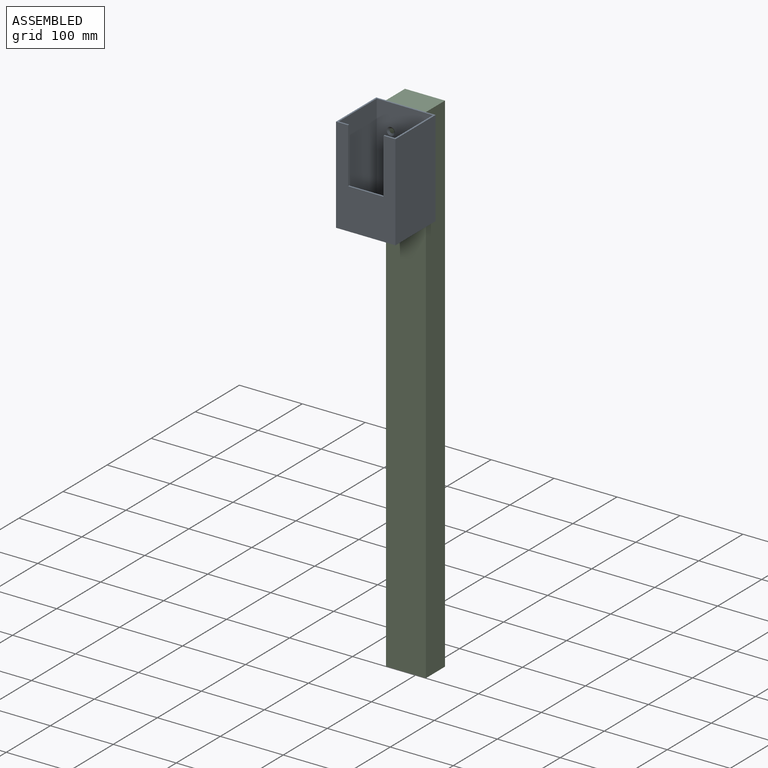
[diagram: assembled view]
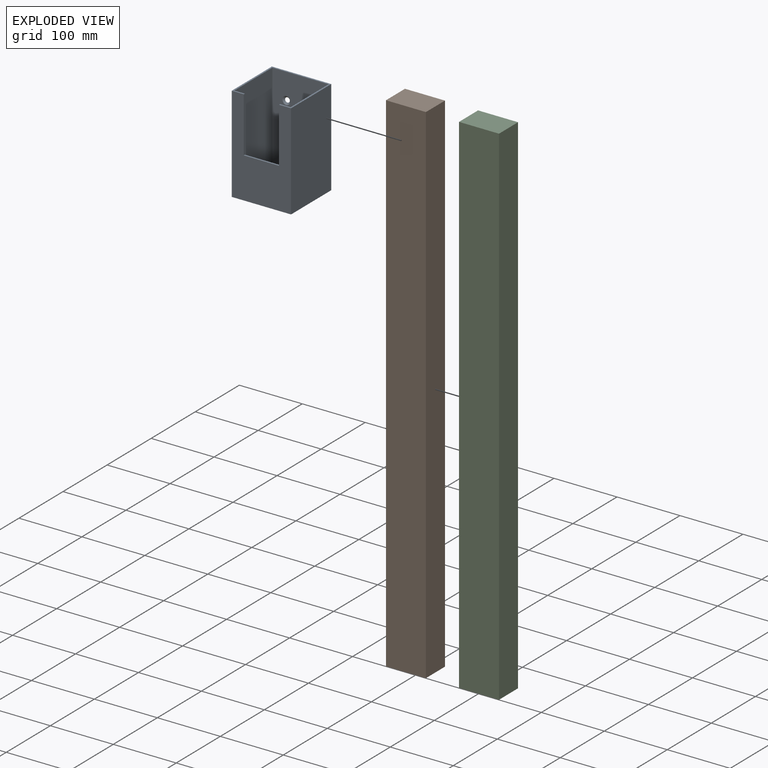
[diagram: exploded view]
GUIDED TOUR — MATED ASSEMBLY (Onshape document 2a7d48a0aaad266be4d17b73, AutoMate assembly 2a7d48a0aaad266be4d17b73_6644b934ed19f1213aa52700_fe9e1bb5ffbb188a94dd1dc5_default)

This assembly has 3 components, labeled P0..P2 below (a component is one placed occurrence of a part; the same part can appear more than once), held together by 2 mates. A mate is a constraint between two components; its type names the relative motion it leaves free:
  PLANAR — leaves sliding in the plane through the listed point (normal = the listed direction) and rotation about that normal free.
Axis/direction vectors are unit vectors and 'through' points are millimeter coordinates, both in the assembly's world frame.

MATES
  1. PLANAR "Planar 1": P0 <-> P1, direction (0.000, 1.000, 0.000) through (0.00, -21.59, 736.38) mm
  2. PLANAR "Planar 2": P0 <-> P1, direction (0.000, 0.000, 1.000) through (0.00, -59.01, 812.80) mm

ASSEMBLY ORDER
  1. P1 — the base component [order heuristic]
  2. P2 — core [order heuristic]
  3. P0 [order verified]
Order-tag legend:
  [order verified] — this step's position reverses a verified removal order: the component was checked to insert without passing through the ones already placed.
  [order heuristic] — the first 2 components form the assembly's core: parts whose collision-free extraction could not be verified, listed in mate-graph order.

Of the 3 components, 3 carry the full construction recipe — the FeatureScript program that regenerates the part's solid from scratch; the rest are supplied as boundary geometry only.
Each toured component is shown spotlighted twice — in the assembled view, then in the exploded view, where a leader line traces a displaced component back to its assembled socket (saturated green if recipe-attached, orange if geometry-only; every other component desaturated gray) — followed by its recipe or geometry summary and the mates that hold it.
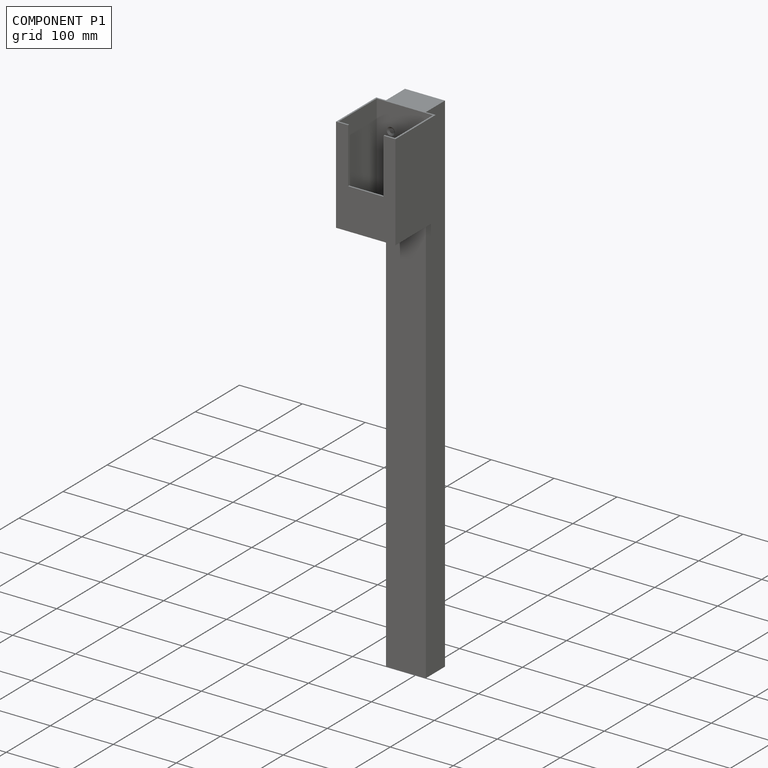
[diagram: component P1 — assembled]
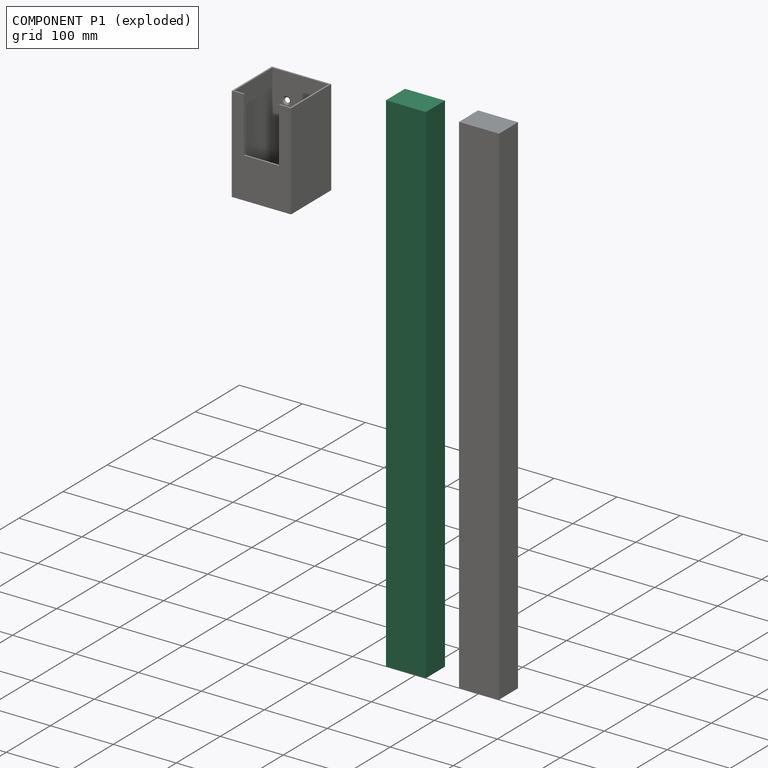
[diagram: component P1 — exploded]
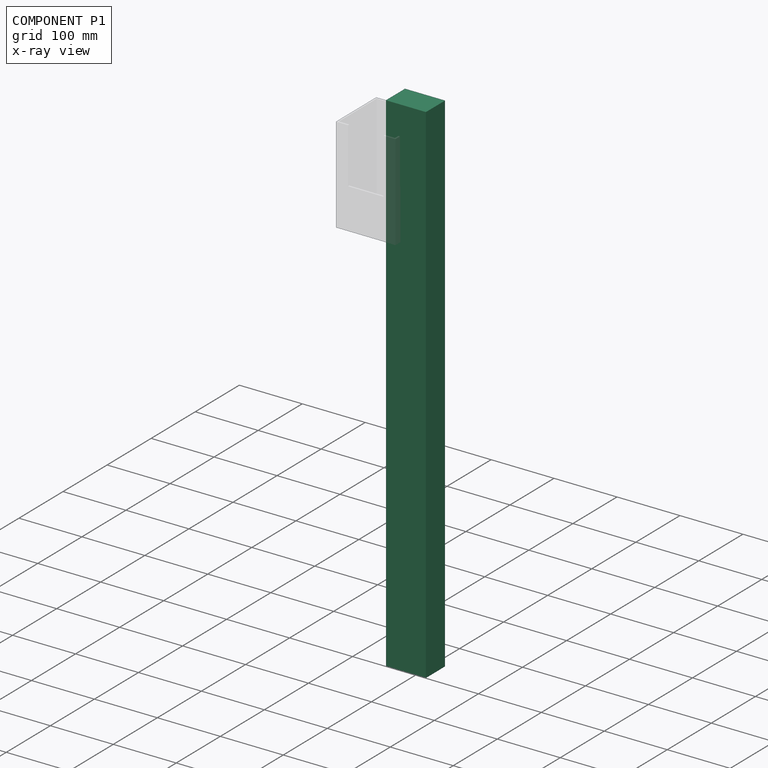
[diagram: component P1 — x-ray view]
COMPONENT P1 — recipe-attached (CADFS 00769639, mesh-verified: the recipe's output STEP matches this component's geometry to below the mesh-comparison resolution (tessellation chordal tolerance ~1.22 mm)).
Held by: PLANAR mate "Planar 1" to P0; PLANAR mate "Planar 2" to P0.
Construction recipe (FeatureScript — the CAD program that rebuilds this solid; sketch coordinates are in the units given by the * unit suffixes, e.g. mm):

FeatureScript 1511;
import(path : "onshape/std/geometry.fs", version : "1511.0");
import(path : "onshape/std/common.fs", version : "1511.0");
const mm = millimeter;
const VERTEX = EntityType.VERTEX;
const EDGE = EntityType.EDGE;
const FACE = EntityType.FACE;
const BODY = EntityType.BODY;
function v(x, y){return vector(x, y);}
function OD(order){return orderDisambiguation(order);}
function OSD(set){return originalSetDisambiguation(set);}
function TD(topology){return topologyDisambiguation(topology);}
function TDD(query){return trueDependencyDisambiguation(query);}
function sQuery(a, b, c) {return sketchEntityQuery(a, b, c);}

annotation { "Feature Type Name" : "Feature", "Feature Type Description" : "" }
export const myFeature = defineFeature(function(context is Context, id is Id, definition is map)
    precondition{}
    {
        {
            var Q0;
            Q0=qCreatedBy(makeId("Top.planeOp"),FACE);
            var sketch = newSketch(context, id + "F0", { "sketchPlane" : qUnion([Q0])});
            skLineSegment(sketch, "E0.bottom", {"start": v(-31.75, 21.59) * mm, "end": v(31.75, 21.59) * mm});
            skLineSegment(sketch, "E0.top", {"start": v(-31.75, -21.6) * mm, "end": v(31.75, -21.6) * mm});
            skLineSegment(sketch, "E0.left", {"start": v(-31.75, 21.59) * mm, "end": v(-31.75, -21.6) * mm});
            skLineSegment(sketch, "E0.right", {"start": v(31.75, 21.59) * mm, "end": v(31.75, -21.6) * mm});
            skPoint(sketch, "E0.middle", {"position": v(0, 0) * mm});
            skSolve(sketch);
        }
        {
            var Q0;
            Q0 = qSketchRegion(id + "F0", true);
            extrude(context, id + "F1", {"entities" : qUnion([Q0]), "depth" : 812.8 * mm, "offsetDistance" : 25.4 * mm});
        }
    });
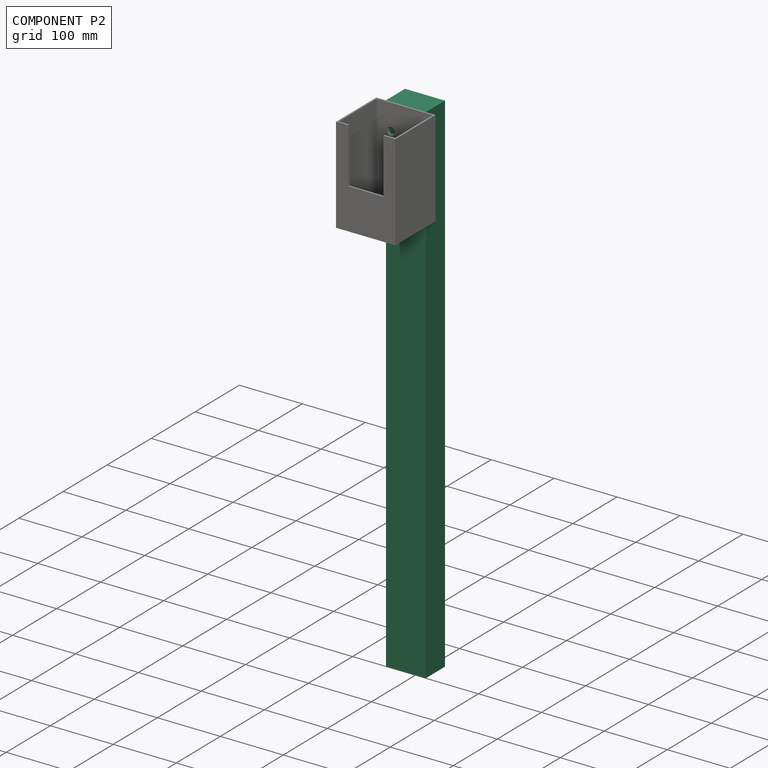
[diagram: component P2 — assembled]
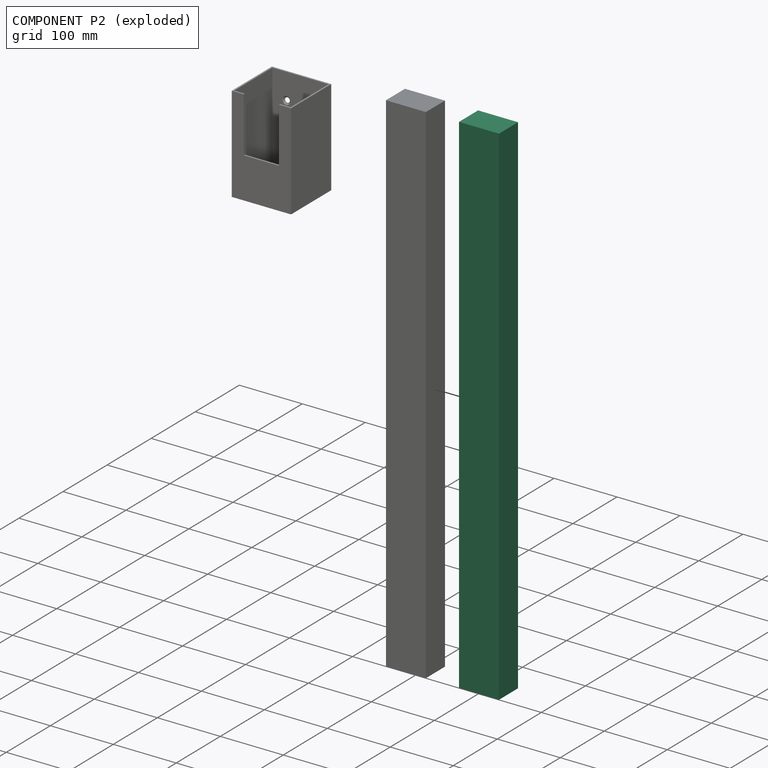
[diagram: component P2 — exploded]
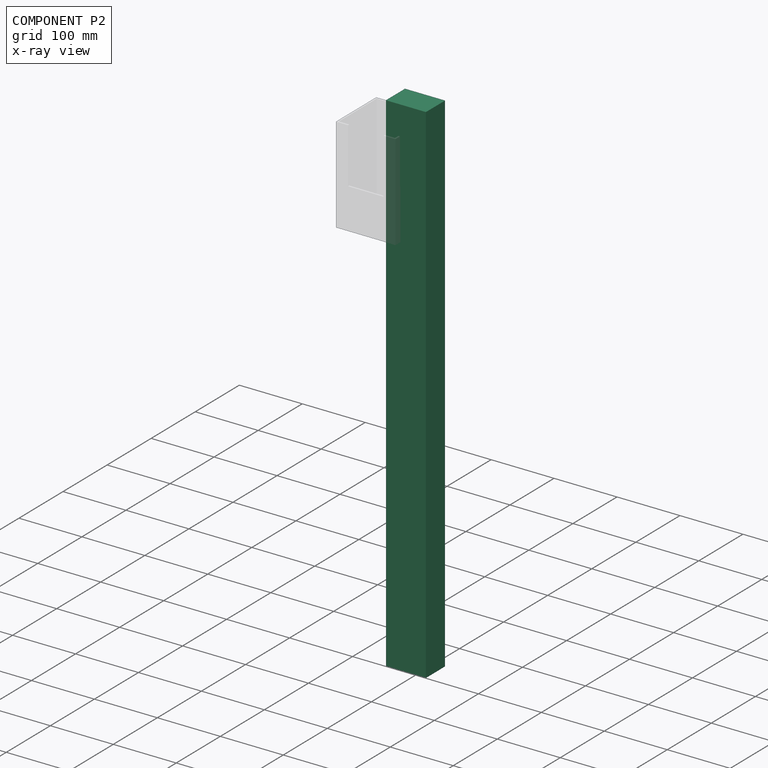
[diagram: component P2 — x-ray view]
COMPONENT P2 — same part as P1 (CADFS 00769639); its construction recipe is shown at P1.
Held by: no mates (free).
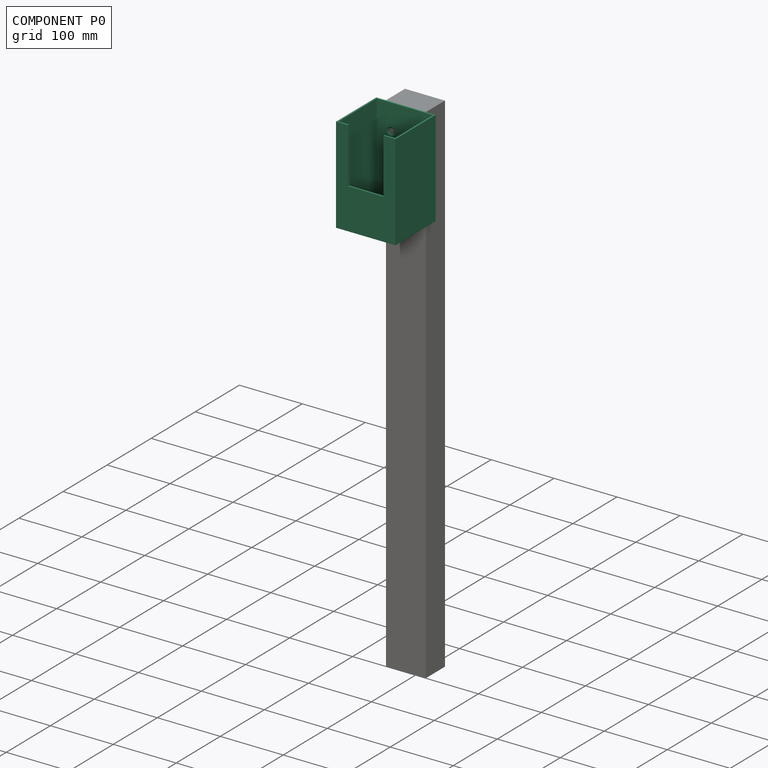
[diagram: component P0 — assembled]
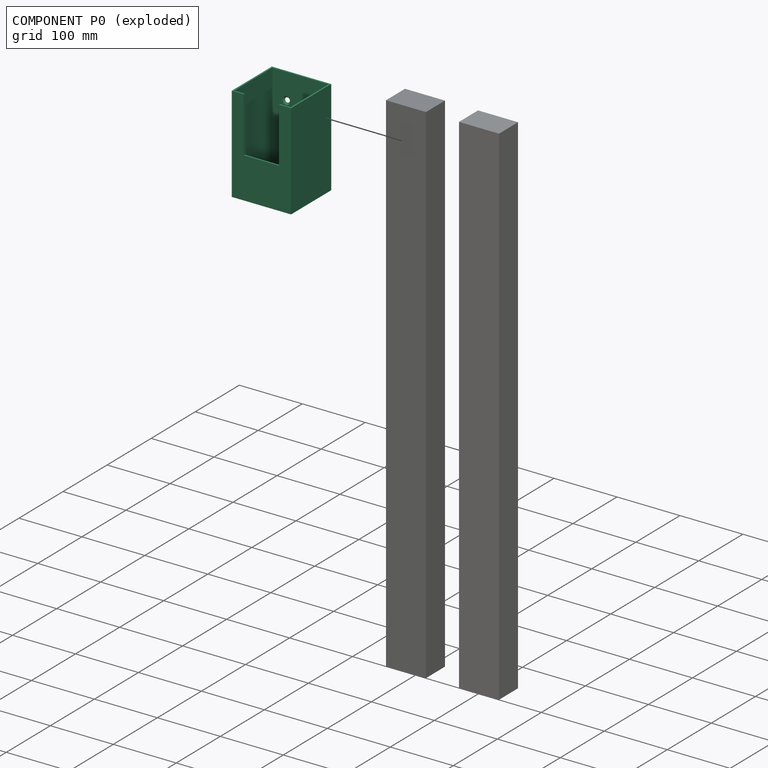
[diagram: component P0 — exploded]
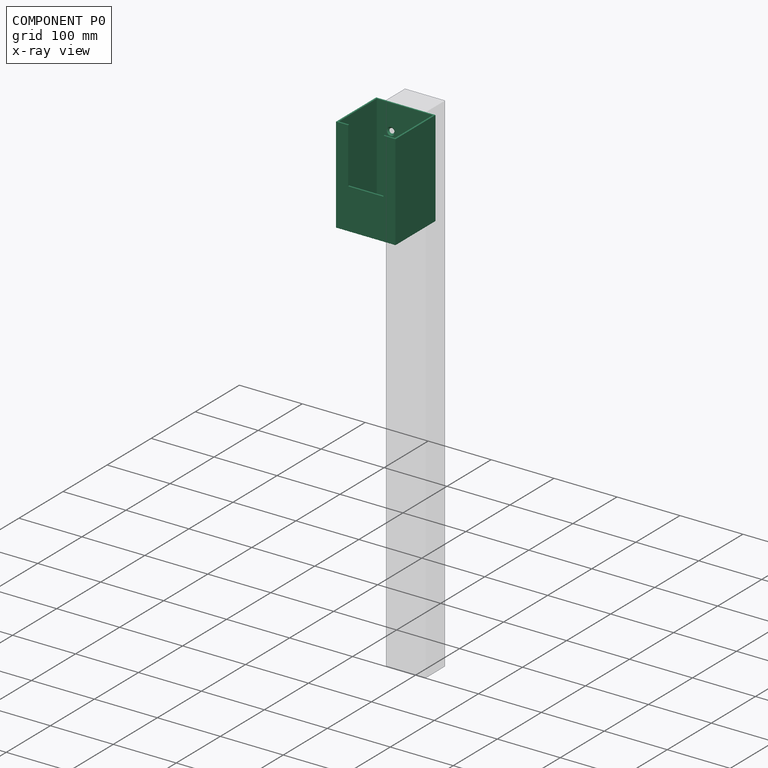
[diagram: component P0 — x-ray view]
COMPONENT P0 — recipe-attached (CADFS 00769638, mesh-verified: the recipe's output STEP matches this component's geometry to below the mesh-comparison resolution (tessellation chordal tolerance ~0.302 mm)).
Held by: PLANAR mate "Planar 1" to P1; PLANAR mate "Planar 2" to P1.
Construction recipe (FeatureScript — the CAD program that rebuilds this solid; sketch coordinates are in the units given by the * unit suffixes, e.g. mm):

FeatureScript 1511;
import(path : "onshape/std/geometry.fs", version : "1511.0");
import(path : "onshape/std/common.fs", version : "1511.0");
const mm = millimeter;
const VERTEX = EntityType.VERTEX;
const EDGE = EntityType.EDGE;
const FACE = EntityType.FACE;
const BODY = EntityType.BODY;
function v(x, y){return vector(x, y);}
function OD(order){return orderDisambiguation(order);}
function OSD(set){return originalSetDisambiguation(set);}
function TD(topology){return topologyDisambiguation(topology);}
function TDD(query){return trueDependencyDisambiguation(query);}
function sQuery(a, b, c) {return sketchEntityQuery(a, b, c);}

annotation { "Feature Type Name" : "Feature", "Feature Type Description" : "" }
export const myFeature = defineFeature(function(context is Context, id is Id, definition is map)
    precondition{}
    {
        {
            var Q0;
            Q0=qCreatedBy(makeId("Top.planeOp"),FACE);
            var sketch = newSketch(context, id + "F0", { "sketchPlane" : qUnion([Q0])});
            skLineSegment(sketch, "E0.bottom", {"start": v(-47.16, 45.58) * mm, "end": v(47.16, 45.58) * mm});
            skLineSegment(sketch, "E0.top", {"start": v(-47.16, -45.58) * mm, "end": v(47.16, -45.58) * mm});
            skLineSegment(sketch, "E0.left", {"start": v(-47.16, 45.58) * mm, "end": v(-47.16, -45.58) * mm});
            skLineSegment(sketch, "E0.right", {"start": v(47.16, 45.58) * mm, "end": v(47.16, -45.58) * mm});
            skPoint(sketch, "E0.middle", {"position": v(0, 0) * mm});
            skSolve(sketch);
        }
        {
            var Q0;
            Q0 = qSketchRegion(id + "F0", true);
            extrude(context, id + "F1", {"entities" : qUnion([Q0]), "depth" : 152.4 * mm, "offsetDistance" : 25.4 * mm});
        }
        {
            var Q0;
            Q0=makeQuery(id+"F1.opExtrude","SWEPT_FACE",FACE,{"disambiguationData":[OSD([sQuery(id+"F0.wireOp",EDGE,"E0.top")])]});
            var sketch = newSketch(context, id + "F2", { "sketchPlane" : qUnion([Q0])});
            skSolve(sketch);
        }
        {
            var Q0;
            {var subQ0=sQuery(id+"F0.wireOp",EDGE,"E0.top");Q0=makeQuery(id+"F2.imprint","IMPRINT",FACE,{"disambiguationData":[TD([[makeQuery(id+"F2.imprint","IMPRINT",EDGE,{"derivedFrom":makeQuery(id+"F1.opExtrude","CAP_EDGE",EDGE,{"disambiguationData":[OSD([subQ0])],"isStart":true})}),1.0]])]});}
            var sketch = newSketch(context, id + "F3", { "sketchPlane" : qUnion([Q0])});
            skLineSegment(sketch, "E1.bottom", {"start": v(19.54, 48.72) * mm, "end": v(-19.54, 48.72) * mm});
            skLineSegment(sketch, "E1.top", {"start": v(25.9, 258.65) * mm, "end": v(-25.9, 258.65) * mm});
            skLineSegment(sketch, "E1.left", {"start": v(25.9, 55.07) * mm, "end": v(25.9, 258.65) * mm});
            skLineSegment(sketch, "E1.right", {"start": v(-25.9, 55.07) * mm, "end": v(-25.9, 258.65) * mm});
            skPoint(sketch, "E1.middle", {"position": v(0, 153.68) * mm});
            skPoint(sketch, "E2.visualSharp", {"position": v(-25.9, 48.72) * mm});
            skArc(sketch, "E2.filletArc", {"start": v(-25.9, 55.07) * mm, "mid": v(-24.03, 50.58) * mm, "end": v(-19.54, 48.72) * mm});
            skPoint(sketch, "E3.visualSharp", {"position": v(25.9, 48.72) * mm});
            skArc(sketch, "E3.filletArc", {"start": v(19.54, 48.72) * mm, "mid": v(24.03, 50.58) * mm, "end": v(25.9, 55.07) * mm});
            skSolve(sketch);
        }
        {
            var Q0;
            Q0=makeQuery(id+"F1.opExtrude","CAP_FACE",FACE,{"disambiguationData":[OSD([sQuery(id+"F0.wireOp",EDGE,"E0.bottom"),sQuery(id+"F0.wireOp",EDGE,"E0.top"),sQuery(id+"F0.wireOp",EDGE,"E0.left"),sQuery(id+"F0.wireOp",EDGE,"E0.right")])],"isStart":false});
            shell(context, id + "F4", {"entities" : qUnion([Q0]), "thickness" : 2.54 * mm});
        }
        {
            var Q0;
            {var subQ0=sQuery(id+"F3.wireOp",EDGE,"E1.bottom");Q0=makeQuery(id+"F3.imprint","IMPRINT",FACE,{"disambiguationData":[TD([[makeQuery(id+"F3.imprint","IMPRINT",EDGE,{"derivedFrom":subQ0}),-1.0]])]});}
            var sketch = newSketch(context, id + "F5", { "sketchPlane" : qUnion([Q0])});
            skLineSegment(sketch, "E4.bottom", {"start": v(28.06, 64.75) * mm, "end": v(-28.06, 64.75) * mm});
            skLineSegment(sketch, "E4.top", {"start": v(28.06, 245.96) * mm, "end": v(-28.06, 245.96) * mm});
            skLineSegment(sketch, "E4.left", {"start": v(28.06, 64.75) * mm, "end": v(28.06, 245.96) * mm});
            skLineSegment(sketch, "E4.right", {"start": v(-28.06, 64.75) * mm, "end": v(-28.06, 245.96) * mm});
            skPoint(sketch, "E4.middle", {"position": v(0, 155.35) * mm});
            skSolve(sketch);
        }
        {
            var Q0;
            Q0 = qSketchRegion(id + "F5", true);
            extrude(context, id + "F6", {"entities" : qUnion([Q0]), "operationType" : NewBodyOperationType.REMOVE, "oppositeDirection" : true, "depth" : 25.4 * mm, "offsetDistance" : 25.4 * mm});
        }
        {
            var Q0;
            Q0=makeQuery(id+"F4.opShell","OFFSET_FACE",FACE,{"disambiguationData":[OSD([sQuery(id+"F0.wireOp",EDGE,"E0.bottom")])]});
            var sketch = newSketch(context, id + "F7", { "sketchPlane" : qUnion([Q0])});
            skLineSegment(sketch, "E5", {"start": v(0, 152.4) * mm, "end": v(-44.62, 152.4) * mm});
            skLineSegment(sketch, "E6", {"start": v(-44.62, 152.4) * mm, "end": v(-22.3, 152.4) * mm});
            skCircle(sketch, "E7", {"center": v(-22.3, 111.04) * mm, "radius": 3.4 * mm});
            skSolve(sketch);
        }
        {
            var Q0;
            Q0=sQuery(id+"F7.wireOp",VERTEX,"E7.center");
            var Q1;
            Q1=makeQuery(id+"F1.opExtrude","SWEPT_BODY",BODY,{"disambiguationData":[OSD([sQuery(id+"F0.wireOp",EDGE,"E0.bottom"),sQuery(id+"F0.wireOp",EDGE,"E0.top"),sQuery(id+"F0.wireOp",EDGE,"E0.left"),sQuery(id+"F0.wireOp",EDGE,"E0.right")])]});
            hole(context, id + "F8", {"style" : HoleStyle.C_SINK, "endStyle" : HoleEndStyle.THROUGH, "holeDiameter" : 6.35 * mm, "cSinkDiameter" : 12.7 * mm, "cSinkAngle" : 90 * degree, "majorDiameter" : 6.35 * mm, "isTappedThrough" : true, "tappedDepth" : 12.7 * mm, "tapClearance" : 3, "locations" : qUnion([Q0]), "scope" : qUnion([Q1])});
        }
        {
            var Q0;
            Q0=makeQuery(id+"F4.opShell","OFFSET_FACE",FACE,{"disambiguationData":[OSD([sQuery(id+"F0.wireOp",EDGE,"E0.bottom")])]});
            var sketch = newSketch(context, id + "F9", { "sketchPlane" : qUnion([Q0])});
            skLineSegment(sketch, "E8", {"start": v(44.62, 152.4) * mm, "end": v(0, 152.4) * mm});
            skLineSegment(sketch, "E9", {"start": v(0, 152.4) * mm, "end": v(22.3, 152.4) * mm});
            skLineSegment(sketch, "E10", {"start": v(-28.66, 110.89) * mm, "end": v(40.77, 110.89) * mm});
            skLineSegment(sketch, "E11", {"start": v(22.3, 152.4) * mm, "end": v(22.3, 91.9) * mm});
            skCircle(sketch, "E12", {"center": v(22.3, 110.89) * mm, "radius": 4.68 * mm});
            skSolve(sketch);
        }
        {
            var Q0;
            Q0=sQuery(id+"F9.wireOp",VERTEX,"E12.center");
            var Q1;
            Q1=makeQuery(id+"F1.opExtrude","SWEPT_BODY",BODY,{"disambiguationData":[OSD([sQuery(id+"F0.wireOp",EDGE,"E0.bottom"),sQuery(id+"F0.wireOp",EDGE,"E0.top"),sQuery(id+"F0.wireOp",EDGE,"E0.left"),sQuery(id+"F0.wireOp",EDGE,"E0.right")])]});
            hole(context, id + "F10", {"style" : HoleStyle.C_SINK, "endStyle" : HoleEndStyle.THROUGH, "holeDiameter" : 6.35 * mm, "cSinkDiameter" : 12.7 * mm, "cSinkAngle" : 90 * degree, "majorDiameter" : 6.35 * mm, "isTappedThrough" : true, "tappedDepth" : 12.7 * mm, "tapClearance" : 3, "locations" : qUnion([Q0]), "scope" : qUnion([Q1])});
        }
    });
PROVENANCE & LICENSES
Assembly (occurrences, transforms, mates, per-part STEP geometry): AutoMate dataset, Zenodo record 7776208, CC0.
Construction recipes: CADFS (HuggingFace VladPyatov/CADFS, CC-BY-4.0, layered over the ABC dataset), FeatureScript reconstruction programs keyed by ABC model id.
Join: ABC meta listings map ABC model id -> Onshape documentId; within a shared document, parts are matched by geometric signature (bounding-box dims + volume at 0.1% relative tolerance, exact B-rep face/solid counts).
Verification: 3 of this assembly's 3 components carry a recipe attachment, and every attachment is mesh-verified: the CADFS STEP and the AutoMate member STEP were compared as meshes in their shared local frame (symmetric sampled-point-to-mesh distance); worst across the 3 attachments: below the mesh-comparison resolution (tessellation chordal tolerance ~1.22 mm) on a 816 mm part.
Renders: orthographic iso camera (az 35 / el 25); the floor grid conveys scale (grid pitch printed in each image; no ruler). In the exploded view each component is displaced by its stored offset vector: the offsets alone carry the explosion direction (mate normal/axis signs are not orientation cues and do not encode it), and separation distances are assigned per mate-chain, not proportionally to assembly-order depth.
